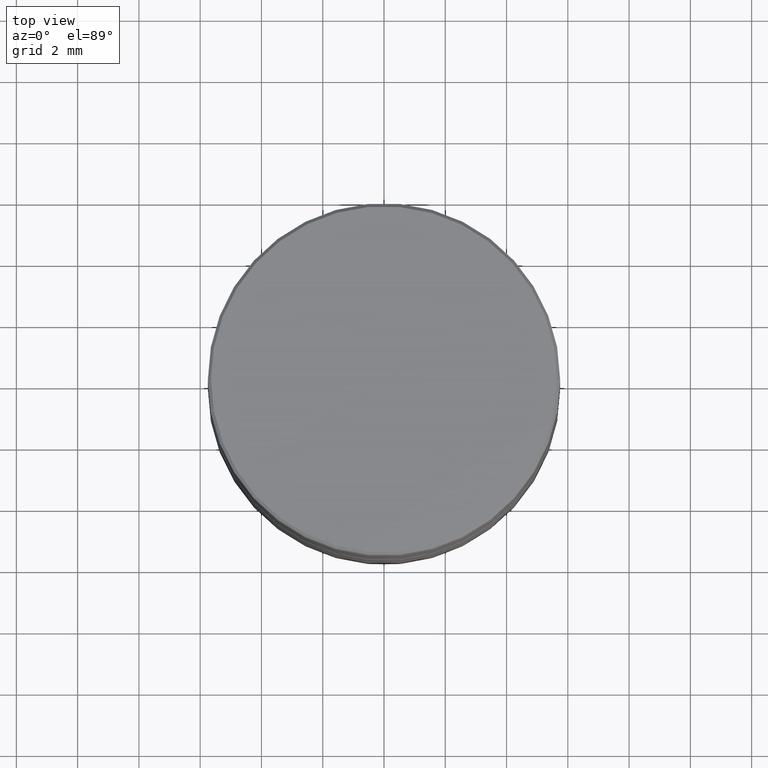
[diagram: clean part render]
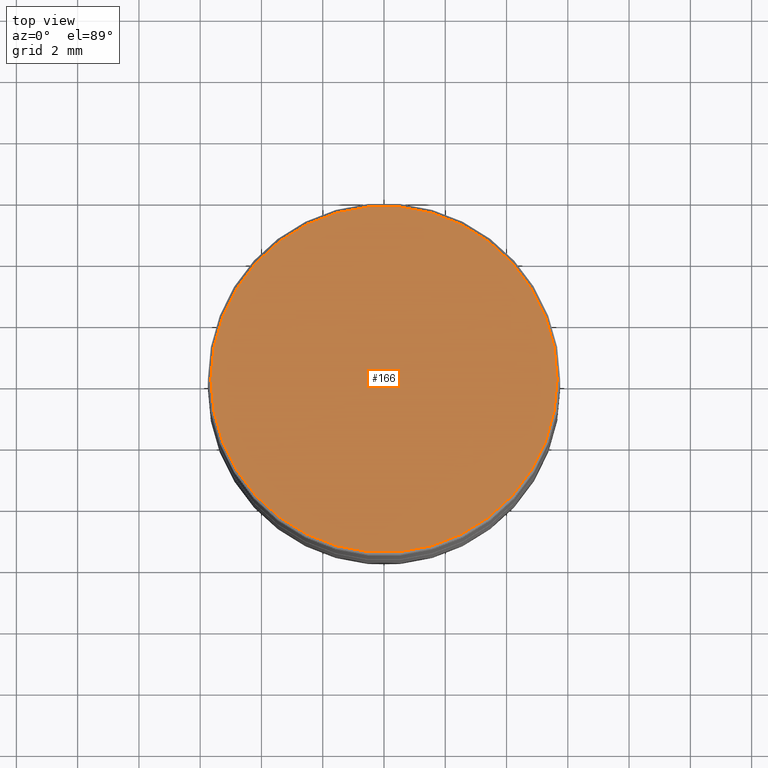
[diagram: same view with one face highlighted and labeled with its STEP entity id]
A machine part, top view. The second image highlights one B-rep face of the part: STEP entity #166.
In plain terms, the highlighted planar face has unit normal (0, -0, 1).
Its self-contained STEP definition (entity closure, byte-faithful):
#29 = CIRCLE ( 'NONE', #453, 5.650000000000005684 ) ;
#157 = EDGE_CURVE ( 'NONE', #1011, #990, #29, .T. ) ;
#166 = ADVANCED_FACE ( 'NONE', ( #179 ), #600, .T. ) ;
#179 = FACE_OUTER_BOUND ( 'NONE', #1089, .T. ) ;
#195 = AXIS2_PLACEMENT_3D ( 'NONE', #224, #261, #674 ) ;
#224 = CARTESIAN_POINT ( 'NONE',  ( 0.000000000000000000, 0.000000000000000000, 0.000000000000000000 ) ) ;
#261 = DIRECTION ( 'NONE',  ( -0.000000000000000000, -0.000000000000000000, 1.000000000000000000 ) ) ;
#287 = CARTESIAN_POINT ( 'NONE',  ( 0.000000000000000000, 0.000000000000000000, 0.000000000000000000 ) ) ;
#354 = CARTESIAN_POINT ( 'NONE',  ( -5.650000000000005684, 0.000000000000000000, 0.000000000000000000 ) ) ;
#453 = AXIS2_PLACEMENT_3D ( 'NONE', #906, #1026, #1131 ) ;
#580 = DIRECTION ( 'NONE',  ( 1.000000000000000000, 0.000000000000000000, 0.000000000000000000 ) ) ;
#600 = PLANE ( 'NONE',  #1096 ) ;
#616 = EDGE_CURVE ( 'NONE', #990, #1011, #1125, .T. ) ;
#674 = DIRECTION ( 'NONE',  ( 1.000000000000000000, 0.000000000000000000, 0.000000000000000000 ) ) ;
#684 = DIRECTION ( 'NONE',  ( 0.000000000000000000, -0.000000000000000000, 1.000000000000000000 ) ) ;
#881 = CARTESIAN_POINT ( 'NONE',  ( 5.650000000000005684, 6.980486755139916067E-16, 0.000000000000000000 ) ) ;
#906 = CARTESIAN_POINT ( 'NONE',  ( 0.000000000000000000, 0.000000000000000000, 0.000000000000000000 ) ) ;
#990 = VERTEX_POINT ( 'NONE', #881 ) ;
#1011 = VERTEX_POINT ( 'NONE', #354 ) ;
#1026 = DIRECTION ( 'NONE',  ( -0.000000000000000000, -0.000000000000000000, 1.000000000000000000 ) ) ;
#1089 = EDGE_LOOP ( 'NONE', ( #1187, #1315 ) ) ;
#1096 = AXIS2_PLACEMENT_3D ( 'NONE', #287, #684, #580 ) ;
#1125 = CIRCLE ( 'NONE', #195, 5.650000000000005684 ) ;
#1131 = DIRECTION ( 'NONE',  ( 1.000000000000000000, 0.000000000000000000, 0.000000000000000000 ) ) ;
#1187 = ORIENTED_EDGE ( 'NONE', *, *, #157, .T. ) ;
#1315 = ORIENTED_EDGE ( 'NONE', *, *, #616, .T. ) ;